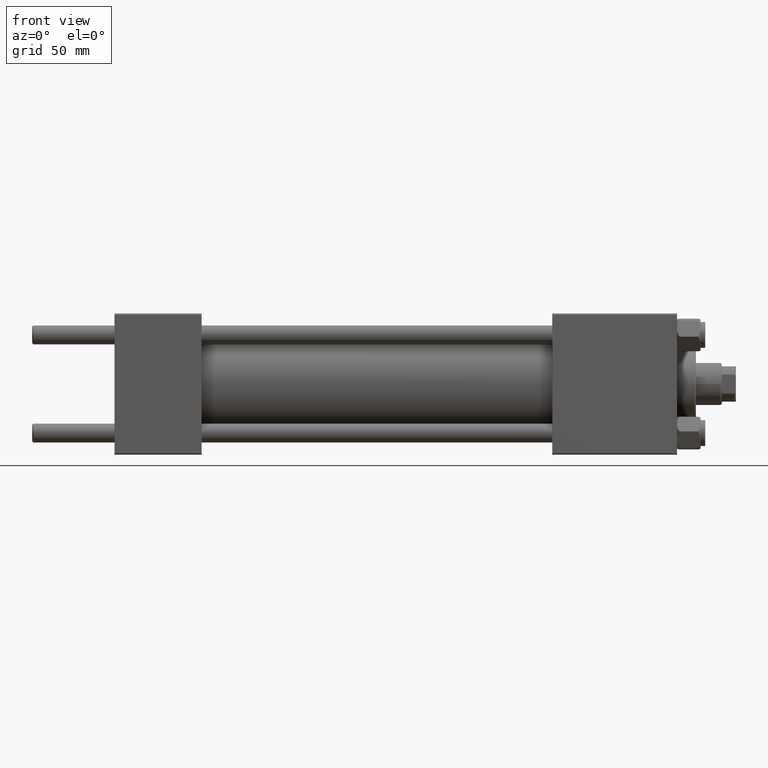
[diagram: clean part render]
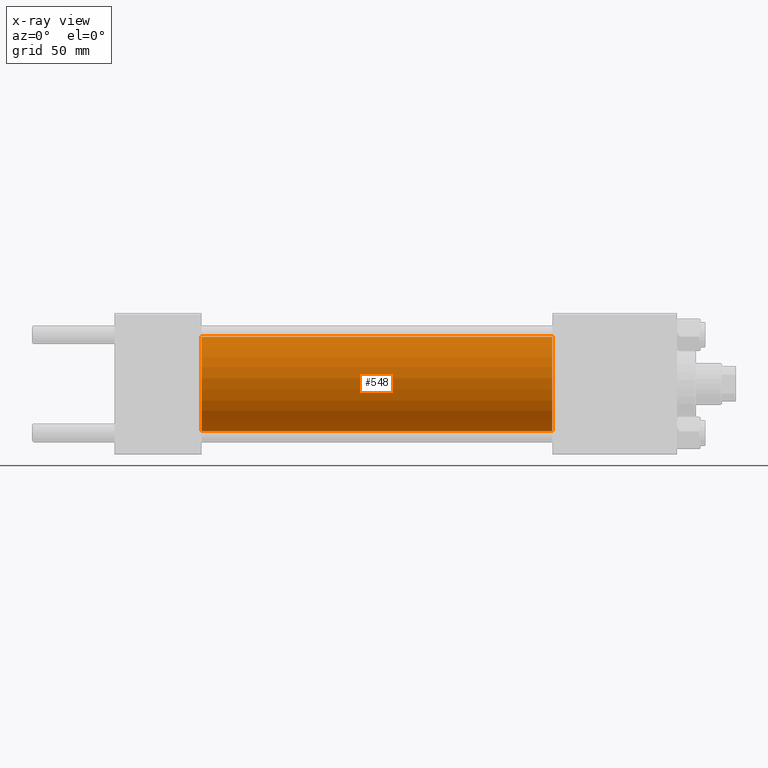
[diagram: x-ray — body ghosted, one internal face saturated and labeled with its STEP entity id]
A machine part, front view, then the same camera in x-ray: the body is ghosted and one INTERNAL B-rep face — a face not visible from any outside direction — is saturated and labeled: STEP entity #548.
In plain terms, the highlighted cylindrical surface (partial cylindrical patch) has radius 20 mm, axis along (-1, -0, -0).
Its self-contained STEP definition (entity closure, byte-faithful):
#548 = ADVANCED_FACE ( 'NONE', ( #3440 ), #7240, .F. ) ;
#3440 = FACE_OUTER_BOUND ( 'NONE', #22099, .T. ) ;
#3716 = CARTESIAN_POINT ( 'NONE',  ( 186.0000000000000000, 0.000000000000000000, 20.00000000000000000 ) ) ;
#5691 = LINE ( 'NONE', #12776, #46503 ) ;
#7240 = CYLINDRICAL_SURFACE ( 'NONE', #27701, 20.00000000000000000 ) ;
#12776 = CARTESIAN_POINT ( 'NONE',  ( 186.0000000000000000, 2.449293598294706513E-15, -20.00000000000000000 ) ) ;
#14035 = VERTEX_POINT ( 'NONE', #17114 ) ;
#15019 = VERTEX_POINT ( 'NONE', #18883 ) ;
#15185 = VERTEX_POINT ( 'NONE', #27217 ) ;
#15321 = DIRECTION ( 'NONE',  ( 0.000000000000000000, 0.000000000000000000, 1.000000000000000000 ) ) ;
#15909 = VERTEX_POINT ( 'NONE', #35454 ) ;
#17114 = CARTESIAN_POINT ( 'NONE',  ( 186.0000000000000000, 2.449293598294706513E-15, -20.00000000000000000 ) ) ;
#18278 = ORIENTED_EDGE ( 'NONE', *, *, #27416, .T. ) ;
#18866 = DIRECTION ( 'NONE',  ( -1.000000000000000000, -0.000000000000000000, -0.000000000000000000 ) ) ;
#18883 = CARTESIAN_POINT ( 'NONE',  ( 37.00000000000000000, 2.449293598294706513E-15, -20.00000000000000000 ) ) ;
#19322 = CIRCLE ( 'NONE', #41973, 20.00000000000000000 ) ;
#19436 = EDGE_CURVE ( 'NONE', #15185, #15019, #39148, .T. ) ;
#22099 = EDGE_LOOP ( 'NONE', ( #30960, #18278, #23342, #32443 ) ) ;
#23342 = ORIENTED_EDGE ( 'NONE', *, *, #19436, .F. ) ;
#26463 = CARTESIAN_POINT ( 'NONE',  ( 186.0000000000000000, 0.000000000000000000, 0.000000000000000000 ) ) ;
#27217 = CARTESIAN_POINT ( 'NONE',  ( 37.00000000000000000, 0.000000000000000000, 20.00000000000000000 ) ) ;
#27416 = EDGE_CURVE ( 'NONE', #14035, #15019, #5691, .T. ) ;
#27701 = AXIS2_PLACEMENT_3D ( 'NONE', #26463, #18866, #15321 ) ;
#28270 = DIRECTION ( 'NONE',  ( 1.000000000000000000, 0.000000000000000000, 0.000000000000000000 ) ) ;
#30960 = ORIENTED_EDGE ( 'NONE', *, *, #35521, .T. ) ;
#32159 = VECTOR ( 'NONE', #41469, 1000.000000000000000 ) ;
#32443 = ORIENTED_EDGE ( 'NONE', *, *, #43196, .F. ) ;
#33396 = DIRECTION ( 'NONE',  ( 1.000000000000000000, 0.000000000000000000, 0.000000000000000000 ) ) ;
#35454 = CARTESIAN_POINT ( 'NONE',  ( 186.0000000000000000, 0.000000000000000000, 20.00000000000000000 ) ) ;
#35521 = EDGE_CURVE ( 'NONE', #15909, #14035, #19322, .T. ) ;
#36572 = DIRECTION ( 'NONE',  ( -1.000000000000000000, -0.000000000000000000, -0.000000000000000000 ) ) ;
#38398 = LINE ( 'NONE', #3716, #32159 ) ;
#39148 = CIRCLE ( 'NONE', #48868, 20.00000000000000000 ) ;
#40999 = CARTESIAN_POINT ( 'NONE',  ( 186.0000000000000000, 0.000000000000000000, 0.000000000000000000 ) ) ;
#41469 = DIRECTION ( 'NONE',  ( -1.000000000000000000, -0.000000000000000000, -0.000000000000000000 ) ) ;
#41973 = AXIS2_PLACEMENT_3D ( 'NONE', #40999, #33396, #48824 ) ;
#43196 = EDGE_CURVE ( 'NONE', #15909, #15185, #38398, .T. ) ;
#44474 = DIRECTION ( 'NONE',  ( 0.000000000000000000, 0.000000000000000000, -1.000000000000000000 ) ) ;
#46503 = VECTOR ( 'NONE', #36572, 1000.000000000000000 ) ;
#48002 = CARTESIAN_POINT ( 'NONE',  ( 37.00000000000000000, 0.000000000000000000, 0.000000000000000000 ) ) ;
#48824 = DIRECTION ( 'NONE',  ( 0.000000000000000000, 0.000000000000000000, -1.000000000000000000 ) ) ;
#48868 = AXIS2_PLACEMENT_3D ( 'NONE', #48002, #28270, #44474 ) ;